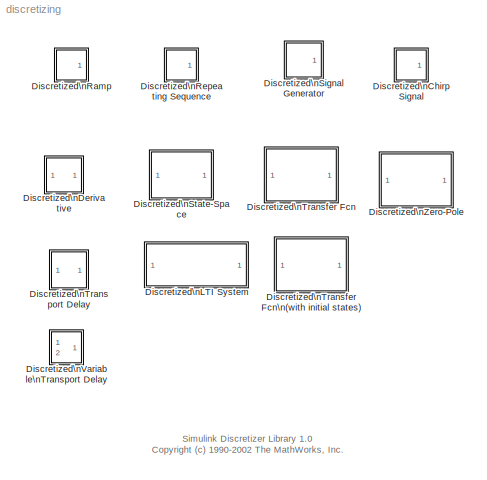
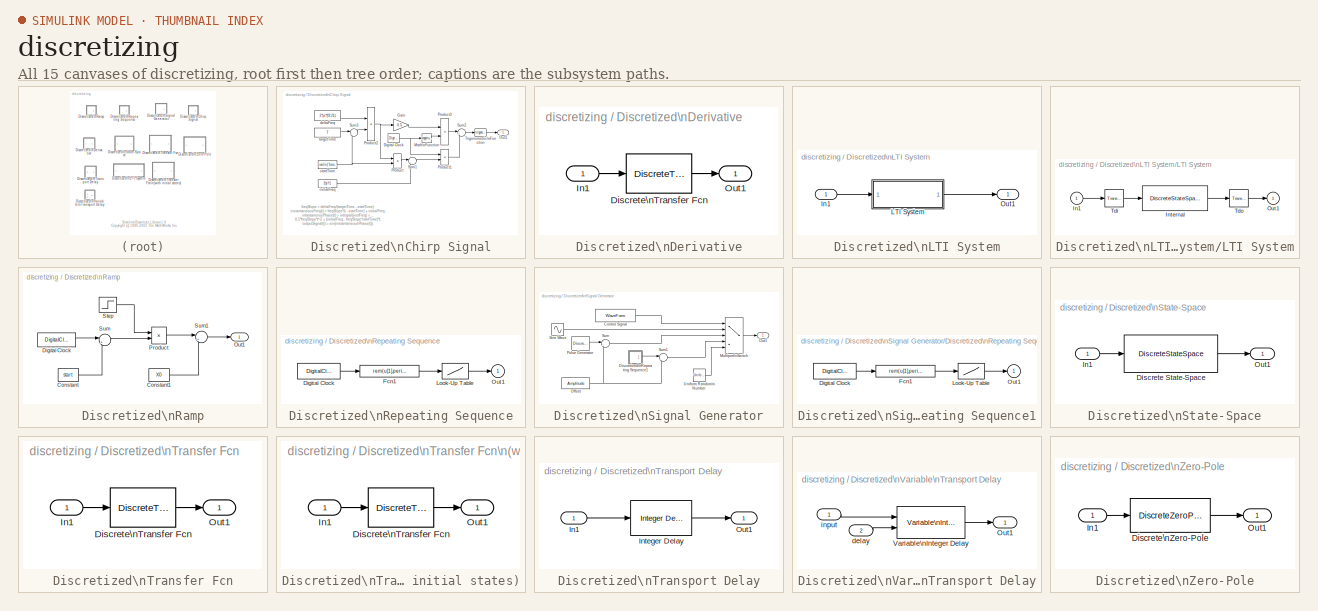
[diagram: thumbnail index - all 15 canvases of the model, root first then tree order]
MODEL discretizing
KIND library
CONFIG PostLoadFcn = sldiscutil('hide_TransportDelay',gcs)
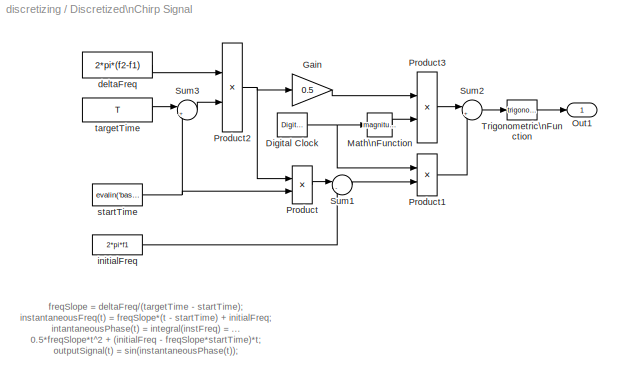
BLOCK [SubSystem] Discretized\nChirp Signal
  MaskCallbackString = ||||
  MaskDescription = Output a linear chirp signal (sine wave  whose frequency varies linearly with time).
  MaskDisplay = plot(t,sin(t.*t))
  MaskEnableString = on,on,on,on,on
  MaskHelp = The chirp signal has linearly increasing frequency with time.  This block can be used for spectral analysis of nonlinear systems.
  MaskIconFrame = on
  MaskIconOpaque = on
  MaskIconRotate = none
  MaskIconUnits = autoscale
  MaskInitialization = t=[0:.1:5];\nset_param([gcb '/startTime'], 'VectorParams1D', VectorParams1D);\nset_param([gcb '/targetTime'], 'VectorParams1D', VectorParams1D);\nset_param([gcb '/initialFreq'], 'VectorParams1D', VectorParams1D);\nset_param([gcb '/deltaFreq'], 'VectorParams1D', VectorParams1D);\nst=SampleTime;\nif length(st)>1\n    st=SampleTime(1);\nend\nsldiscutil('initchirpmask', st);
  MaskPromptString = Initial frequency (Hz):|Target time (secs):|Frequency at target time (Hz):|Interpret vectors parameters as 1-D|Sample Time
  MaskSelfModifiable = on
  MaskStyleString = edit,edit,edit,checkbox,edit
  MaskToolTipString = on,on,on,on,on
  MaskTunableValueString = on,on,on,on,on
  MaskType = discretizedchirp
  MaskValueString = 0.1|50|20|on|1
  MaskVarAliasString = ,,,,
  MaskVariables = f1=@1;T=@2;f2=@3;VectorParams1D=&4;SampleTime=@5;
  MaskVisibilityString = on,on,on,on,on
  Ports = [0, 1]
  TreatAsAtomicUnit = off
BLOCK [DigitalClock] Discretized\nChirp Signal/Digital Clock
  SampleTime = SampleTime
BLOCK [Gain] Discretized\nChirp Signal/Gain
  Gain = 0.5
BLOCK [Math] Discretized\nChirp Signal/Math\nFunction
  Operator = magnitude^2
  Ports = [1, 1]
BLOCK [Outport] Discretized\nChirp Signal/Out1
BLOCK [Product] Discretized\nChirp Signal/Product
  Ports = [2, 1]
BLOCK [Product] Discretized\nChirp Signal/Product1
  Ports = [2, 1]
BLOCK [Product] Discretized\nChirp Signal/Product2
  Inputs = */
  Ports = [2, 1]
BLOCK [Product] Discretized\nChirp Signal/Product3
  Ports = [2, 1]
BLOCK [Sum] Discretized\nChirp Signal/Sum1
  IconShape = round
  Inputs = |-+
  Ports = [2, 1]
BLOCK [Sum] Discretized\nChirp Signal/Sum2
  IconShape = round
  Inputs = |++
  Ports = [2, 1]
BLOCK [Sum] Discretized\nChirp Signal/Sum3
  IconShape = round
  Inputs = |+-
  Ports = [2, 1]
BLOCK [Trigonometry] Discretized\nChirp Signal/Trigonometric\nFunction
  Ports = [1, 1]
BLOCK [Constant] Discretized\nChirp Signal/deltaFreq
  Value = 2*pi*(f2-f1)
BLOCK [Constant] Discretized\nChirp Signal/initialFreq
  Value = 2*pi*f1
BLOCK [Constant] Discretized\nChirp Signal/startTime
  Value = evalin('base',get_param(bdroot(gcb),'StartTime'))
BLOCK [Constant] Discretized\nChirp Signal/targetTime
  Value = T
BLOCK [SubSystem] Discretized\nDerivative
  MaskCallbackString = hidecrit||
  MaskDescription = Continuous mask uses c2d to transform an 's' transfer function onto a Discrete Transfer function block inside at the sample time specified.
  MaskDisplay = text( 0.5, 0.45, 'du/dt', 'horizontalAlignment','center')\ntext( 0.5, 1.0, method,'verticalAlignment','top')
  MaskEnableString = on,on,on
  MaskIconFrame = on
  MaskIconOpaque = on
  MaskIconRotate = port
  MaskIconUnits = normalized
  MaskInitialization = st=SampleTime;\nif length(st)>1\n    st=SampleTime(1);\nend\nNumerator = [1 0];\nDenominator = [1];\nif(st>0)\n%	if(strcmpi(method, 'zoh') | strcmpi(method, 'foh'))\n%       [numd, dend] = sldiscutil('disctransferfcn', {st, 'tustin', Wc, Numerator, Denominator});\n%	else\n    [numd, dend] = sldiscutil('disctransferfcn', {st, method, Wc, Numerator, Denominator});\n%	end\nend\ns = get_param(gcb,'mas...<+77ch>
  MaskPromptString = Method:|Sample time:|Critical Frequency (Hz):
  MaskSelfModifiable = on
  MaskStyleString = popup(zoh|foh|tustin|prewarp|matched),edit,edit
  MaskToolTipString = on,on,on
  MaskTunableValueString = on,on,on
  MaskType = DiscretizedDerivative
  MaskValueString = tustin|1|1
  MaskVarAliasString = ,,
  MaskVariables = method=&1;SampleTime=@2;Wc=@3;
  MaskVisibilityString = on,on,off
  Ports = [1, 1]
  TreatAsAtomicUnit = off
BLOCK [DiscreteTransferFcn] Discretized\nDerivative/Discrete\nTransfer Fcn
  Denominator = dend
  Numerator = numd
  SampleTime = SampleTime
BLOCK [Inport] Discretized\nDerivative/In1
BLOCK [Outport] Discretized\nDerivative/Out1
BLOCK [SubSystem] Discretized\nLTI System
  MaskCallbackString = |||hidecrit|
  MaskDescription = Continuous mask uses c2d to transform parameters onto the Discrete block parameters.
  MaskDisplay = disp(get_param(gcb, 'sysc'))\n\n\n\n\n\n\n\ntext( 0.5, 1.0, method, 'verticalAlignment','top')
  MaskEnableString = on,on,on,on,on
  MaskIconFrame = on
  MaskIconOpaque = on
  MaskIconRotate = port
  MaskIconUnits = normalized
  MaskInitialization = st=SampleTime;\n\n\n\n\n\n\n\nif length(st)>1\n\n\n\n\n\n\n\n    st=SampleTime(1);\n\n\n\n\n\n\n\nend\n\n\n\n\n\n\n\nif(isa(sysc,'ss'))\n\n\n\n\n\n\n\n    set_param(gcb, 'MaskEnables',{'on','on','on','on','on'});\n\n\n\n\n\n\n\nelse\n\n\n\n\n\n\n\n	set_param(gcb, 'MaskEnables',{'on','off','on','on','on'});\n\n\n\n\n\n\n\nend\n\n\n\n\n\n\n\n\n\n\n\n\n\n\n\nif st > 0\n\n\n\n\n\n\n\n	[discsys, discic] = sldiscu...<+380ch>
  MaskPromptString = System (enter in s-domain):|Initial conditions (enter in s-domain):|Sample time (enter in s-domain):|Method (enter in s-domain):|Critical frquency(Hz) (enter in s-domain):
  MaskSelfModifiable = on
  MaskStyleString = edit,edit,edit,popup(zoh|foh|tustin|prewarp|matched|imp),edit
  MaskToolTipString = on,on,on,on,on
  MaskTunableValueString = off,on,on,on,on
  MaskType = DiscretizedLTISystem
  MaskValueString = ss(tf(1,[1 1]))|0|1|tustin|0
  MaskVarAliasString = ,,,,
  MaskVariables = sysc=@1;cic=@2;SampleTime=@3;method=&4;Wc=@5;
  MaskVisibilityString = on,on,on,on,off
  Ports = [1, 1]
  TreatAsAtomicUnit = off
BLOCK [Inport] Discretized\nLTI System/In1
BLOCK [SubSystem] Discretized\nLTI System/LTI System
  AncestorBlock = cstblocks/LTI System
  MaskCallbackString = ltimask('MaskLTICallback',gcb);|
  MaskDescription = The LTI System block accepts both continuous and discrete LTI models as defined in the Control System Toolbox. Transfer function, state-space, and zero-pole-gain formats are all supported in this block.\n\nNote: Initial states are only meaningful for state-space systems.
  MaskDisplay = disp(sysname)
  MaskEnableString = on,on
  MaskHelp = The LTI System block accepts any of the three standard LTI models described in the Control System Toolbox: transfer function, zero/pole/gain, or state space. Internally, LTI models will be converted to their state space equivalent for evaluation.\n<p>\nIn the editable text box labeled <b>LTI System Variable</b>, enter a valid LTI model.\n<p>\nIn the editable text box labeled <b>Initial States</b> ...<+127ch>
  MaskIconFrame = on
  MaskIconOpaque = on
  MaskIconRotate = none
  MaskIconUnits = autoscale
  MaskInitialization = [A,B,C,D,Ts,Tdi,Tdo,X0,sysname]=ltimask('Initialize',gcb,sys,IC);
  MaskPromptString = LTI system variable|Initial states   (state-space only)
  MaskSelfModifiable = on
  MaskStyleString = edit,edit
  MaskToolTipString = on,on
  MaskTunableValueString = on,on
  MaskType = LTI Block
  MaskValueString = discsys|discic
  MaskVarAliasString = ,
  MaskVariables = sys=@1;IC=@2;
  MaskVisibilityString = on,on
  Ports = [1, 1]
  TreatAsAtomicUnit = off
BLOCK [Inport] Discretized\nLTI System/LTI System/In1
BLOCK [DiscreteStateSpace] Discretized\nLTI System/LTI System/Internal
  A = A
  B = B
  C = C
  D = D
  SampleTime = Ts
  X0 = X0
BLOCK [Outport] Discretized\nLTI System/LTI System/Out1
  InitialOutput = 0
BLOCK [Reference] Discretized\nLTI System/LTI System/Tdi  REF=cstextras/Transport Delay\n(masked)  (lib defined in mdl_a5737024c95e)
  Ports = [1, 1]
  SourceBlock = cstextras/Transport Delay\n(masked)
  SourceType = Transport Delay (masked)
  Tag = InputDelayBlock
  Td = Tdi
  bufsize = 1024
  u0 = 0
BLOCK [Reference] Discretized\nLTI System/LTI System/Tdo  REF=cstextras/Transport Delay\n(masked)  (lib defined in mdl_a5737024c95e)
  Ports = [1, 1]
  SourceBlock = cstextras/Transport Delay\n(masked)
  SourceType = Transport Delay (masked)
  Tag = OutputDelayBlock
  Td = Tdo
  bufsize = 1024
  u0 = 0
BLOCK [Outport] Discretized\nLTI System/Out1
BLOCK [SubSystem] Discretized\nRamp
  MaskCallbackString = |||
  MaskDescription = ramp
  MaskDisplay = plot([0:10],[1,1,1,1:8])
  MaskEnableString = on,on,on,on
  MaskIconFrame = on
  MaskIconOpaque = on
  MaskIconRotate = none
  MaskIconUnits = autoscale
  MaskInitialization = curblkc  = find_system(gcb,'FollowLinks','on','LookUnderMasks','all','searchdepth', 1, 'BlockType','Clock');\n\n\n\n\n\n\n\ncurblkdc = find_system(gcb,'FollowLinks','on','LookUnderMasks','all','searchdepth', 1, 'BlockType','DigitalClock');\n\n\n\n\n\n\n\nst=SampleTime;\n\n\n\n\n\n\n\nif length(st)>1\n\n\n\n\n\n\n\n    st=SampleTime(1);\n\n\n\n\n\n\n\nend\n\n\n\n\n\n\n\nsldiscutil('initrampmask', st);
  MaskPromptString = Slope:|Start time:|Initial output:|Sample time:
  MaskSelfModifiable = on
  MaskStyleString = edit,edit,edit,edit
  MaskToolTipString = on,on,on,on
  MaskTunableValueString = on,on,on,on
  MaskType = DiscretizedRamp
  MaskValueString = 1|0|0|1
  MaskVarAliasString = ,,,
  MaskVariables = slope=@1;start=@2;X0=@3;SampleTime=@4;
  MaskVisibilityString = on,on,on,on
  Ports = [0, 1]
  TreatAsAtomicUnit = off
BLOCK [Constant] Discretized\nRamp/Constant
  Value = start
BLOCK [Constant] Discretized\nRamp/Constant1
  Value = X0
BLOCK [DigitalClock] Discretized\nRamp/Digital Clock
  SampleTime = SampleTime
BLOCK [Outport] Discretized\nRamp/Out1
BLOCK [Product] Discretized\nRamp/Product
  Ports = [2, 1]
BLOCK [Step] Discretized\nRamp/Step
  After = slope
  SampleTime = SampleTime
  Time = start
BLOCK [Sum] Discretized\nRamp/Sum
  IconShape = round
  Inputs = |+-
  Ports = [2, 1]
BLOCK [Sum] Discretized\nRamp/Sum1
  IconShape = round
  Inputs = |++
  Ports = [2, 1]
BLOCK [SubSystem] Discretized\nRepeating Sequence
  MaskCallbackString = ||
  MaskDescription = Repeating table.
  MaskDisplay = plot([rep_seq_t,rep_seq_t+period,rep_seq_t+2*period,rep_seq_t(1)+3*period],[rep_seq_y,rep_seq_y,rep_seq_y,rep_seq_y(1)])
  MaskEnableString = on,on,on
  MaskHelp = Repeats cycle given in table. Time values should be monotonically increasing.
  MaskIconFrame = on
  MaskIconOpaque = on
  MaskIconRotate = none
  MaskIconUnits = autoscale
  MaskInitialization = period = max(rep_seq_t);\nst=SampleTime;\nif length(st)>1\n    st=SampleTime(1);\nend\nsldiscutil('initrepeatsequencemask', st);
  MaskPromptString = Time values:|Output values:|Sample time:
  MaskSelfModifiable = on
  MaskStyleString = edit,edit,edit
  MaskToolTipString = on,on,on
  MaskTunableValueString = on,on,on
  MaskType = DiscretizedRepeatingTable
  MaskValueString = [0 2]|[0 2]|1
  MaskVarAliasString = ,,
  MaskVariables = rep_seq_t=@1;rep_seq_y=@2;SampleTime=@3;
  MaskVisibilityString = on,on,on
  Ports = [0, 1]
  TreatAsAtomicUnit = off
BLOCK [DigitalClock] Discretized\nRepeating Sequence/Digital Clock
  SampleTime = SampleTime
BLOCK [Fcn] Discretized\nRepeating Sequence/Fcn1
  Expr = rem(u[1],period)
BLOCK [Lookup] Discretized\nRepeating Sequence/Look-Up Table
  InputValues = rep_seq_t
  OutputValues = rep_seq_y
BLOCK [Outport] Discretized\nRepeating Sequence/Out1
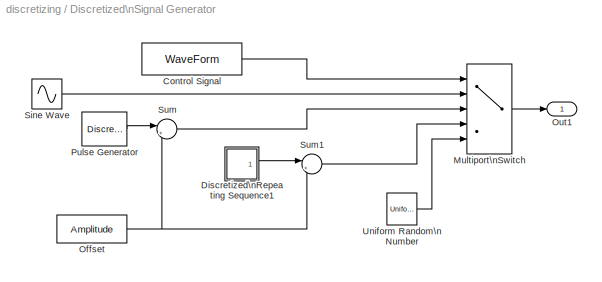
BLOCK [SubSystem] Discretized\nSignal Generator
  MaskCallbackString = ||||
  MaskDescription = A discrete equivalent to the Signal Generator Block.
  MaskDisplay = plot( 1,1,99,99,   0+xdrw, ydrw );\nplot( 1,1,99,99, 22+xdrw, ydrw );\nplot( 1,1,99,99, 44+xdrw, ydrw );\nplot( 1,1,99,99, 66+xdrw, ydrw );\nplot( 1,1,99,99, 22+xcirc, 44+ycirc );\nplot( 1,1,99,99, 44+xcirc, 44+ycirc );\n
  MaskEnableString = on,on,on,on,on
  MaskIconFrame = on
  MaskIconOpaque = on
  MaskIconRotate = none
  MaskIconUnits = autoscale
  MaskInitialization = xdrw = 11*[1,1,2,2,1];\nydrw = [72,88,88,72,72];\nxcirc = 11*[0,0,0.25,0.75,1,1,0.75,0.25,0];\nycirc = 16*[0.25,0.75,1,1,0.75,0.25,0,0,0.25];\nswitch Units\n  case 'rad/sec'\n    frequencyHz = Frequency/(2*pi);\n    frequencyRads = Frequency;\n  case 'Hertz'\n    frequencyHz = Frequency;\n    frequencyRads = Frequency*2*pi;\nend\nPeriod = 1.0/frequencyHz;\nst=SampleTime;\nDupSampleTime = SampleTim...<+383ch>
  MaskPromptString = Waveform:|Amplitude:|Frequency:|Units:|Sample time:
  MaskSelfModifiable = on
  MaskStyleString = popup(sine|square|sawtooth|random),edit,edit,popup(rad/sec|Hertz),edit
  MaskToolTipString = on,on,on,on,on
  MaskTunableValueString = on,on,on,on,on
  MaskType = DiscretizedSignalGenerator
  MaskValueString = sine|1|1|Hertz|0.1
  MaskVarAliasString = ,,,,
  MaskVariables = WaveForm=@1;Amplitude=@2;Frequency=@3;Units=&4;SampleTime=@5;
  MaskVisibilityString = on,on,on,on,on
  Ports = [0, 1]
  TreatAsAtomicUnit = off
BLOCK [Constant] Discretized\nSignal Generator/Control Signal
  Value = WaveForm
BLOCK [SubSystem] Discretized\nSignal Generator/Discretized\nRepeating Sequence1
  AncestorBlock = discretizing/Discretized\nRepeating Sequence
  MaskCallbackString = ||
  MaskDescription = Repeating table.
  MaskDisplay = plot([rep_seq_t,rep_seq_t+period,rep_seq_t+2*period,rep_seq_t(1)+3*period],[rep_seq_y,rep_seq_y,rep_seq_y,rep_seq_y(1)])
  MaskEnableString = on,on,on
  MaskHelp = Repeats cycle given in table. Time values should be monotonically increasing.
  MaskIconFrame = on
  MaskIconOpaque = on
  MaskIconRotate = none
  MaskIconUnits = autoscale
  MaskInitialization = period = max(rep_seq_t);\nst=SampleTime;\nif length(st)>1\n    st=SampleTime(1);\nend\nsldiscutil('initrepeatsequencemask', st);
  MaskPromptString = Time values:|Output values:|Sample time:
  MaskStyleString = edit,edit,edit
  MaskToolTipString = on,on,on
  MaskTunableValueString = on,on,on
  MaskType = DiscretizedRepeatingTable
  MaskValueString = [0 Period]|[0 ((-2)*Amplitude)]|DupSampleTime
  MaskVarAliasString = ,,
  MaskVariables = rep_seq_t=@1;rep_seq_y=@2;SampleTime=@3;
  MaskVisibilityString = on,on,on
  Ports = [0, 1]
  TreatAsAtomicUnit = off
BLOCK [DigitalClock] Discretized\nSignal Generator/Discretized\nRepeating Sequence1/Digital Clock
  SampleTime = SampleTime
BLOCK [Fcn] Discretized\nSignal Generator/Discretized\nRepeating Sequence1/Fcn1
  Expr = rem(u[1],period)
BLOCK [Lookup] Discretized\nSignal Generator/Discretized\nRepeating Sequence1/Look-Up Table
  InputValues = rep_seq_t
  OutputValues = rep_seq_y
BLOCK [Outport] Discretized\nSignal Generator/Discretized\nRepeating Sequence1/Out1
BLOCK [MultiPortSwitch] Discretized\nSignal Generator/Multiport\nSwitch
  Ports = [5, 1]
  SaturateOnIntegerOverflow = off
BLOCK [Constant] Discretized\nSignal Generator/Offset
  Value = Amplitude
BLOCK [Outport] Discretized\nSignal Generator/Out1
BLOCK [DiscretePulseGenerator] Discretized\nSignal Generator/Pulse Generator
  Amplitude = 2*Amplitude
  Period = PeriodSamples
  PhaseDelay = halfSamples
  PulseWidth = halfSamples
  SampleTime = st
BLOCK [Sin] Discretized\nSignal Generator/Sine Wave
  Amplitude = Amplitude
  Frequency = frequencyRads
  SampleTime = SampleTime
  SineType = Time based
BLOCK [Sum] Discretized\nSignal Generator/Sum
  IconShape = round
  Inputs = |+-
  Ports = [2, 1]
BLOCK [Sum] Discretized\nSignal Generator/Sum1
  IconShape = round
  Inputs = |++
  Ports = [2, 1]
BLOCK [UniformRandomNumber] Discretized\nSignal Generator/Uniform Random\nNumber
  Maximum = Amplitude
  Minimum = (-1)*Amplitude
  SampleTime = SampleTime
BLOCK [SubSystem] Discretized\nState-Space
  MaskCallbackString = |||||||hidecrit|
  MaskDescription = Continuous mask uses c2d to transform parameters onto the Discrete State-Space block inside.
  MaskDisplay = text( 0.5, 0.65, 'x'' = Ax+Bu', 'horizontalAlignment', 'center');\ntext( 0.5, 0.4, 'y = Cx+Du', 'horizontalAlignment', 'center');\ntext( 0.5, 1.0, method, 'verticalAlignment', 'top')
  MaskEnableString = on,on,on,on,on,on,on,on,on
  MaskIconFrame = on
  MaskIconOpaque = on
  MaskIconRotate = port
  MaskIconUnits = normalized
  MaskInitialization = st=SampleTime;\nif length(st)>1\n    st=SampleTime(1);\nend\nif(st>0)\n    [Ad, Bd, Cd, Dd, icd] = sldiscutil('discstatespace', {st,method,Wc,A,B,C,D,ic});\nend\nsldiscutil('initssmask', st);\nif(st==0)\nset_param([gcb '/State Space'], 'AbsoluteTolerance', AbsTol);\nend
  MaskPromptString = A (enter in s-domain:)|B (enter in s-domain:)|C (enter in s-domain:)|D (enter in s-domain:)|Initial conditions (enter in s-domain:)|Absolute tolerance|Sample time:|Method:|Critical Frequency (Hz):
  MaskSelfModifiable = on
  MaskStyleString = edit,edit,edit,edit,edit,edit,edit,popup(zoh|foh|tustin|prewarp|matched),edit
  MaskToolTipString = on,on,on,on,on,on,on,on,on
  MaskTunableValueString = on,on,on,on,on,on,on,on,on
  MaskType = DiscretizedStateSpace
  MaskValueString = 1|1|1|1|0|auto|1|tustin|1
  MaskVarAliasString = ,,,,,,,,
  MaskVariables = A=@1;B=@2;C=@3;D=@4;ic=@5;AbsTol=&6;SampleTime=@7;method=&8;Wc=@9;
  MaskVisibilityString = on,on,on,on,on,on,on,on,off
  Ports = [1, 1]
  TreatAsAtomicUnit = off
BLOCK [DiscreteStateSpace] Discretized\nState-Space/Discrete State-Space
  A = Ad
  B = Bd
  C = Cd
  D = Dd
  SampleTime = SampleTime
  X0 = icd
BLOCK [Inport] Discretized\nState-Space/In1
BLOCK [Outport] Discretized\nState-Space/Out1
BLOCK [SubSystem] Discretized\nTransfer Fcn
  MaskCallbackString = ||||hidecrit|
  MaskDescription = Continuous mask uses c2d to transform parameters onto the Discrete Transfer function block inside.
  MaskDisplay = dpoly(nums,dens)\ntext( 0.5, 1.0, method, 'verticalAlignment','top')
  MaskEnableString = on,on,on,on,on,on
  MaskIconFrame = on
  MaskIconOpaque = on
  MaskIconRotate = port
  MaskIconUnits = normalized
  MaskInitialization = st=SampleTime;\nif length(st)>1\n    st=SampleTime(1);\nend\nif(st>0)\n    [numd,dend] = sldiscutil('disctransferfcn',{st,method,Wc,Numerator,Denominator});\nend	\ns = get_param(gcb,'maskvalues');\nnums = s{1};\ndens = s{2};\n%numc = eval(nums);\n%denc = eval(dens);\nsldiscutil('inittfmask', st);\nif(st==0)\nset_param([gcb '/Transfer Fcn'], 'AbsoluteTolerance', AbsTol);\nend
  MaskPromptString = Numerator (enter in s-domain:)|Denominator (enter in s-domain:)|Absolute tolerance:|Sample time:|Method:|Critical Frequency (Hz):
  MaskSelfModifiable = on
  MaskStyleString = edit,edit,edit,edit,popup(zoh|foh|tustin|prewarp|matched),edit
  MaskToolTipString = on,on,on,on,on,on
  MaskTunableValueString = on,on,on,on,on,on
  MaskType = DiscretizedTransferFcn
  MaskValueString = [1]|[1 1]|auto|1|tustin|1
  MaskVarAliasString = ,,,,,
  MaskVariables = Numerator=@1;Denominator=@2;AbsTol=&3;SampleTime=@4;method=&5;Wc=@6;
  MaskVisibilityString = on,on,on,on,on,off
  Ports = [1, 1]
  TreatAsAtomicUnit = off
BLOCK [DiscreteTransferFcn] Discretized\nTransfer Fcn/Discrete\nTransfer Fcn
  Denominator = dend
  Numerator = numd
  SampleTime = SampleTime
BLOCK [Inport] Discretized\nTransfer Fcn/In1
BLOCK [Outport] Discretized\nTransfer Fcn/Out1
BLOCK [SubSystem] Discretized\nTransfer Fcn\n(with initial states)
  MaskCallbackString = ||||hidecrit|
  MaskDescription = Continuous mask uses c2d to transform parameters onto the Discrete Transfer function block inside.
  MaskDisplay = dpoly(nums,dens)\ntext( 0.5, 1.0, method, 'verticalAlignment','top')
  MaskEnableString = on,on,on,on,on,on
  MaskIconFrame = on
  MaskIconOpaque = on
  MaskIconRotate = port
  MaskIconUnits = normalized
  MaskInitialization = st=SampleTime;\nif length(st)>1\n    st=SampleTime(1);\nend\nif(st>0)\n    [numd,dend] = sldiscutil('disctransferfcn',{st,method,Wc,Numerator,Denominator});\nend	\ns = get_param(gcb,'maskvalues');\nnums = s{1};\ndens = s{2};\n%numc = eval(nums);\n%denc = eval(dens);\nsldiscutil('inittfmask', st);\n%if(st==0)\n%set_param([gcb '/Transfer Fcn'], 'X0', X0);\n%end
  MaskPromptString = Numerator (enter in s-domain:)|Denominator (enter in s-domain:)|Initial conditions:|Sample time:|Method:|Critical Frequency (Hz):
  MaskSelfModifiable = on
  MaskStyleString = edit,edit,edit,edit,popup(zoh|foh|tustin|prewarp|matched),edit
  MaskToolTipString = on,on,on,on,on,on
  MaskTunableValueString = on,on,on,on,on,on
  MaskType = DiscretizedTransferFcnWithIC
  MaskValueString = [1]|[1 1]|auto|1|tustin|1
  MaskVarAliasString = ,,,,,
  MaskVariables = Numerator=@1;Denominator=@2;X0=&3;SampleTime=@4;method=&5;Wc=@6;
  MaskVisibilityString = on,on,on,on,on,off
  Ports = [1, 1]
  TreatAsAtomicUnit = off
BLOCK [DiscreteTransferFcn] Discretized\nTransfer Fcn\n(with initial states)/Discrete\nTransfer Fcn
  Denominator = dend
  Numerator = numd
  SampleTime = SampleTime
BLOCK [Inport] Discretized\nTransfer Fcn\n(with initial states)/In1
BLOCK [Outport] Discretized\nTransfer Fcn\n(with initial states)/Out1
BLOCK [SubSystem] Discretized\nTransport Delay
  AttributesFormatString = (Round to %<rounding>)
  MaskCallbackString = |||
  MaskDescription = Uses either an integer delay or a Discrete State Space Transfer Function for fractional delays internally to mimic the behavior of a continuous transport delay.
  MaskDisplay = plot(t, sin(t))\nplot(t(pshift+1:end),sin(t(1:end-pshift)))\nplot([0 t(pshift+1)],[0 0])\nplot([3 4.2 4 4 4.2],[.4 .4 .46 .34 .4])\nplot([3.9 5.1 4.9 4.9 5.1],-[.4 .4 .46 .34 .4])\n
  MaskEnableString = on,on,on,on
  MaskHelp = An Integer Delay block is used whenever rounding is performed (Floor, Ceiling, or Nearest), or when the Delay divided by the Sample time is an integer.  If the Fractional Delay is chosen, a Discrete State Space Transfer Function is developed using the Thiran filter algorithm to approximate the continuous Transport Delay.  When the Fractional Delay (no Dir. FT) option is selected, the Thiran filter...<+179ch>
  MaskIconFrame = on
  MaskIconOpaque = on
  MaskIconRotate = none
  MaskIconUnits = autoscale
  MaskInitialization = n = 10;t = 0:pi/n:2.25*pi;pshift = floor(2*n/3);\nst=SampleTime;\nif length(st)>1\n   st=SampleTime(1);\nend\nif(st>0)\n 	if (abs(delay/st-round(delay/st)) < eps*abs(delay/st)) | rounding == 3\n		samples=round(delay/st);\n	elseif rounding == 1\n		samples = floor(delay/st);\n	elseif rounding == 2\n		samples = ceil(delay/st);\n	else\n		samples=delay/st;\n		if (rounding == 5)\n			samples = samples - ...<+512ch>
  MaskPromptString = Delay (sec):|Initial value:|Sample time:|Round toward:
  MaskSelfModifiable = on
  MaskStyleString = edit,edit,edit,popup(Floor|Ceiling|Nearest|Fractional Delay|Fractional Delay (no direct FT))
  MaskToolTipString = on,on,on,on
  MaskTunableValueString = on,on,on,on
  MaskType = DiscretizedTransportDelay
  MaskValueString = 1|0|1|Floor
  MaskVarAliasString = ,,,
  MaskVariables = delay=@1;ic=@2;SampleTime=@3;rounding=@4;
  MaskVisibilityString = on,on,on,on
  Ports = [1, 1]
  TreatAsAtomicUnit = off
BLOCK [Inport] Discretized\nTransport Delay/In1
  SampleTime = SampleTime
BLOCK [Reference] Discretized\nTransport Delay/Integer Delay  REF=simulink/Discrete/Integer Delay
  NumDelays = samples
  Ports = [1, 1]
  SourceBlock = simulink/Discrete/Integer Delay
  SourceType = Integer Delay
  samptime = st
  vinit = ic
BLOCK [Outport] Discretized\nTransport Delay/Out1
BLOCK [SubSystem] Discretized\nVariable\nTransport Delay
  MaskCallbackString = |||
  MaskDescription = Uses a Z^-k variable delay line to mimic the behavior of the continuous variable transport delay block.
  MaskDisplay = text(width/2-3*expWidth, height/2, 'z');\ntext(width/2-3*(expWidth-1), height/2+5, '-k');
  MaskEnableString = on,on,on,on
  MaskHelp = Note: the Buffer size parameter is included only for holding the parameter value in case of conversion back to the continuous variable transport delay.
  MaskIconFrame = on
  MaskIconOpaque = on
  MaskIconRotate = none
  MaskIconUnits = pixels
  MaskInitialization = st=SampleTime;\nif length(st)>1\n     st=SampleTime(1);\nend\nif(st>0)\n    maxDelaySamples=ceil(MaximumDelay/st);\nelse\n	maxDelaySamples = 0;\nend\npos = get_param(gcb,'Position');\nwidth = pos(3) - pos(1);\nheight = pos(4) - pos(2);\nexpWidth = 2;\nsldiscutil('initvartransdelaymask', st);
  MaskPromptString = Maximum delay (sec):|Initial input:|Buffer size:|Sample time:
  MaskSelfModifiable = on
  MaskStyleString = edit,edit,edit,edit
  MaskToolTipString = on,on,on,on
  MaskTunableValueString = on,on,on,on
  MaskType = DiscretizedVarTransDelay
  MaskValueString = 1|0|1024|1
  MaskVarAliasString = ,,,
  MaskVariables = MaximumDelay=@1;InitialInput=@2;MaximumPoints=@3;SampleTime=@4;
  MaskVisibilityString = on,on,on,on
  Ports = [2, 1]
  TreatAsAtomicUnit = off
BLOCK [Outport] Discretized\nVariable\nTransport Delay/Out1
BLOCK [Reference] Discretized\nVariable\nTransport Delay/Variable\nInteger Delay  REF=dspbdsp2/Variable\nInteger Delay
  Ports = [2, 1]
  SourceBlock = dspbdsp2/Variable\nInteger Delay
  SourceType = Variable Integer Delay
  dmax = maxDelaySamples
  frame = off
  ic = InitialInput
  numChans = 1
BLOCK [Inport] Discretized\nVariable\nTransport Delay/delay
  Port = 2
  SampleTime = SampleTime
BLOCK [Inport] Discretized\nVariable\nTransport Delay/input
  SampleTime = SampleTime
BLOCK [SubSystem] Discretized\nZero-Pole
  MaskCallbackString = |||||hidecrit|
  MaskDescription = Continuous mask uses c2d to transform parameters onto the Discrete Zero-Pole block inside.
  MaskDisplay = droots(zeross,poless,gainss)\ntext( 0.5, 1.0, method, 'verticalAlignment','top')
  MaskEnableString = on,on,on,on,on,on,on
  MaskIconFrame = on
  MaskIconOpaque = on
  MaskIconRotate = port
  MaskIconUnits = normalized
  MaskInitialization = st=SampleTime;\nif length(st)>1\n    st=SampleTime(1);\nend\nif(st>0)\n    [zerosd,polesd,gaind] = sldiscutil('disczpk', {st,method,Wc,Zeros,Poles,Gain});\nend	\ns = get_param(gcb,'maskvalues');\nzeross = s{1};\npoless = s{2};\ngainss = s{3};\n%zerosc = eval(zeross);\n%polesc = eval(poless);\n%gainsc = eval(gainss);\nsldiscutil('initzpkmask', st);\nif(st==0)\nset_param([gcb '/Zero Pole'], 'Absolut...<+26ch>
  MaskPromptString = Zeros (enter in s-main:)|Poles (enter in s-domain:)|Gain (enter in s-domain:)|Absolute tolerance:|Sample time:|Method:|Critical Frequency (Hz):
  MaskSelfModifiable = on
  MaskStyleString = edit,edit,edit,edit,edit,popup(zoh|foh|tustin|prewarp|matched),edit
  MaskToolTipString = on,on,on,on,on,on,on
  MaskTunableValueString = on,on,on,on,on,on,on
  MaskType = DiscretizedZeroPole
  MaskValueString = [1]|[1 1]|[2]|auto|1|tustin|1
  MaskVarAliasString = ,,,,,,
  MaskVariables = Zeros=@1;Poles=@2;Gain=@3;AbsTol=&4;SampleTime=@5;method=&6;Wc=@7;
  MaskVisibilityString = on,on,on,on,on,on,off
  Ports = [1, 1]
  TreatAsAtomicUnit = off
BLOCK [DiscreteZeroPole] Discretized\nZero-Pole/Discrete\nZero-Pole
  Gain = gaind
  Poles = polesd
  SampleTime = SampleTime
  Zeros = zerosd
BLOCK [Inport] Discretized\nZero-Pole/In1
BLOCK [Outport] Discretized\nZero-Pole/Out1
ANNOTATION (root): Simulink Discretizer Library 1.0\nCopyright (c) 1990-2002 The MathWorks, Inc.
ANNOTATION Discretized\nChirp Signal: freqSlope = deltaFreq/(targetTime - startTime);\ninstantaneousFreq(t) = freqSlope*(t - startTime) + initialFreq;\nintantaneousPhase(t) = integral(instFreq) = ...\n 0.5*freqSlope*t^2 + (initialFreq - freqSlope*startTime)*t;\noutputSignal(t) = sin(instantaneousPhase(t));
NET Discretized\nChirp Signal/Digital Clock:1 -> Discretized\nChirp Signal/Math\nFunction:1, Discretized\nChirp Signal/Product1:1
LINE Discretized\nChirp Signal/Gain:1 -> Discretized\nChirp Signal/Product3:1
LINE Discretized\nChirp Signal/Math\nFunction:1 -> Discretized\nChirp Signal/Product3:2
LINE Discretized\nChirp Signal/Product1:1 -> Discretized\nChirp Signal/Sum2:2
NET Discretized\nChirp Signal/Product2:1 -> Discretized\nChirp Signal/Gain:1, Discretized\nChirp Signal/Product:1
LINE Discretized\nChirp Signal/Product3:1 -> Discretized\nChirp Signal/Sum2:1
LINE Discretized\nChirp Signal/Product:1 -> Discretized\nChirp Signal/Sum1:1
LINE Discretized\nChirp Signal/Sum1:1 -> Discretized\nChirp Signal/Product1:2
LINE Discretized\nChirp Signal/Sum2:1 -> Discretized\nChirp Signal/Trigonometric\nFunction:1
LINE Discretized\nChirp Signal/Sum3:1 -> Discretized\nChirp Signal/Product2:2
LINE Discretized\nChirp Signal/Trigonometric\nFunction:1 -> Discretized\nChirp Signal/Out1:1
LINE Discretized\nChirp Signal/deltaFreq:1 -> Discretized\nChirp Signal/Product2:1
LINE Discretized\nChirp Signal/initialFreq:1 -> Discretized\nChirp Signal/Sum1:2
NET Discretized\nChirp Signal/startTime:1 -> Discretized\nChirp Signal/Product:2, Discretized\nChirp Signal/Sum3:2
LINE Discretized\nChirp Signal/targetTime:1 -> Discretized\nChirp Signal/Sum3:1
LINE Discretized\nDerivative/Discrete\nTransfer Fcn:1 -> Discretized\nDerivative/Out1:1
LINE Discretized\nDerivative/In1:1 -> Discretized\nDerivative/Discrete\nTransfer Fcn:1
LINE Discretized\nLTI System/In1:1 -> Discretized\nLTI System/LTI System:1
LINE Discretized\nLTI System/LTI System/In1:1 -> Discretized\nLTI System/LTI System/Tdi:1
LINE Discretized\nLTI System/LTI System/Internal:1 -> Discretized\nLTI System/LTI System/Tdo:1
LINE Discretized\nLTI System/LTI System/Tdi:1 -> Discretized\nLTI System/LTI System/Internal:1
LINE Discretized\nLTI System/LTI System/Tdo:1 -> Discretized\nLTI System/LTI System/Out1:1
LINE Discretized\nLTI System/LTI System:1 -> Discretized\nLTI System/Out1:1
LINE Discretized\nRamp/Constant1:1 -> Discretized\nRamp/Sum1:2
LINE Discretized\nRamp/Constant:1 -> Discretized\nRamp/Sum:2
LINE Discretized\nRamp/Digital Clock:1 -> Discretized\nRamp/Sum:1
LINE Discretized\nRamp/Product:1 -> Discretized\nRamp/Sum1:1
LINE Discretized\nRamp/Step:1 -> Discretized\nRamp/Product:1
LINE Discretized\nRamp/Sum1:1 -> Discretized\nRamp/Out1:1
LINE Discretized\nRamp/Sum:1 -> Discretized\nRamp/Product:2
LINE Discretized\nRepeating Sequence/Digital Clock:1 -> Discretized\nRepeating Sequence/Fcn1:1
LINE Discretized\nRepeating Sequence/Fcn1:1 -> Discretized\nRepeating Sequence/Look-Up Table:1
LINE Discretized\nRepeating Sequence/Look-Up Table:1 -> Discretized\nRepeating Sequence/Out1:1
LINE Discretized\nSignal Generator/Control Signal:1 -> Discretized\nSignal Generator/Multiport\nSwitch:1
LINE Discretized\nSignal Generator/Discretized\nRepeating Sequence1/Digital Clock:1 -> Discretized\nSignal Generator/Discretized\nRepeating Sequence1/Fcn1:1
LINE Discretized\nSignal Generator/Discretized\nRepeating Sequence1/Fcn1:1 -> Discretized\nSignal Generator/Discretized\nRepeating Sequence1/Look-Up Table:1
LINE Discretized\nSignal Generator/Discretized\nRepeating Sequence1/Look-Up Table:1 -> Discretized\nSignal Generator/Discretized\nRepeating Sequence1/Out1:1
LINE Discretized\nSignal Generator/Discretized\nRepeating Sequence1:1 -> Discretized\nSignal Generator/Sum1:1
LINE Discretized\nSignal Generator/Multiport\nSwitch:1 -> Discretized\nSignal Generator/Out1:1
NET Discretized\nSignal Generator/Offset:1 -> Discretized\nSignal Generator/Sum1:2, Discretized\nSignal Generator/Sum:2
LINE Discretized\nSignal Generator/Pulse Generator:1 -> Discretized\nSignal Generator/Sum:1
LINE Discretized\nSignal Generator/Sine Wave:1 -> Discretized\nSignal Generator/Multiport\nSwitch:2
LINE Discretized\nSignal Generator/Sum1:1 -> Discretized\nSignal Generator/Multiport\nSwitch:4
LINE Discretized\nSignal Generator/Sum:1 -> Discretized\nSignal Generator/Multiport\nSwitch:3
LINE Discretized\nSignal Generator/Uniform Random\nNumber:1 -> Discretized\nSignal Generator/Multiport\nSwitch:5
LINE Discretized\nState-Space/Discrete State-Space:1 -> Discretized\nState-Space/Out1:1
LINE Discretized\nState-Space/In1:1 -> Discretized\nState-Space/Discrete State-Space:1
LINE Discretized\nTransfer Fcn/Discrete\nTransfer Fcn:1 -> Discretized\nTransfer Fcn/Out1:1
LINE Discretized\nTransfer Fcn/In1:1 -> Discretized\nTransfer Fcn/Discrete\nTransfer Fcn:1
LINE Discretized\nTransfer Fcn\n(with initial states)/Discrete\nTransfer Fcn:1 -> Discretized\nTransfer Fcn\n(with initial states)/Out1:1
LINE Discretized\nTransfer Fcn\n(with initial states)/In1:1 -> Discretized\nTransfer Fcn\n(with initial states)/Discrete\nTransfer Fcn:1
LINE Discretized\nTransport Delay/In1:1 -> Discretized\nTransport Delay/Integer Delay:1
LINE Discretized\nTransport Delay/Integer Delay:1 -> Discretized\nTransport Delay/Out1:1
LINE Discretized\nVariable\nTransport Delay/Variable\nInteger Delay:1 -> Discretized\nVariable\nTransport Delay/Out1:1
LINE Discretized\nVariable\nTransport Delay/delay:1 -> Discretized\nVariable\nTransport Delay/Variable\nInteger Delay:2
LINE Discretized\nVariable\nTransport Delay/input:1 -> Discretized\nVariable\nTransport Delay/Variable\nInteger Delay:1
LINE Discretized\nZero-Pole/Discrete\nZero-Pole:1 -> Discretized\nZero-Pole/Out1:1
LINE Discretized\nZero-Pole/In1:1 -> Discretized\nZero-Pole/Discrete\nZero-Pole:1
note: NET lines group one-source signal fan-out (src -> all destinations, sorted); 1:1 wires keep LINE
